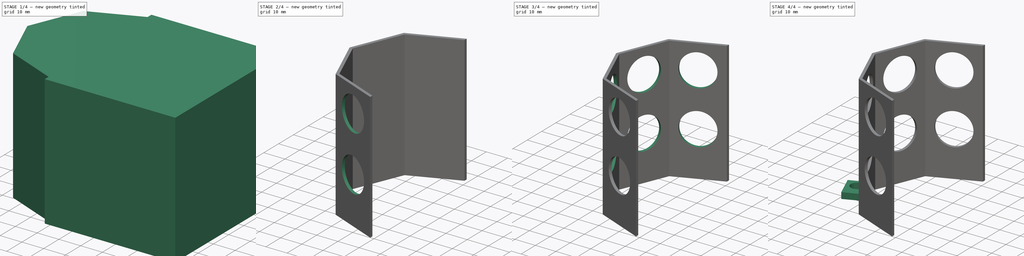
[diagram: build sequence overview — one tinted view per stage of 4, left to right]
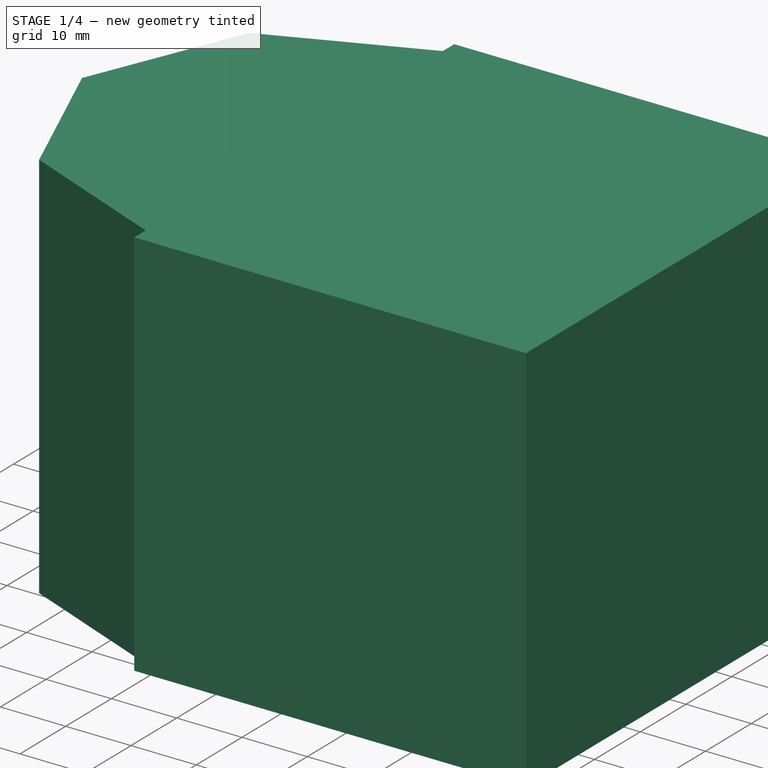
[diagram: stage 1 of 4 — iso view after this stage's code; geometry added in this stage tinted green]
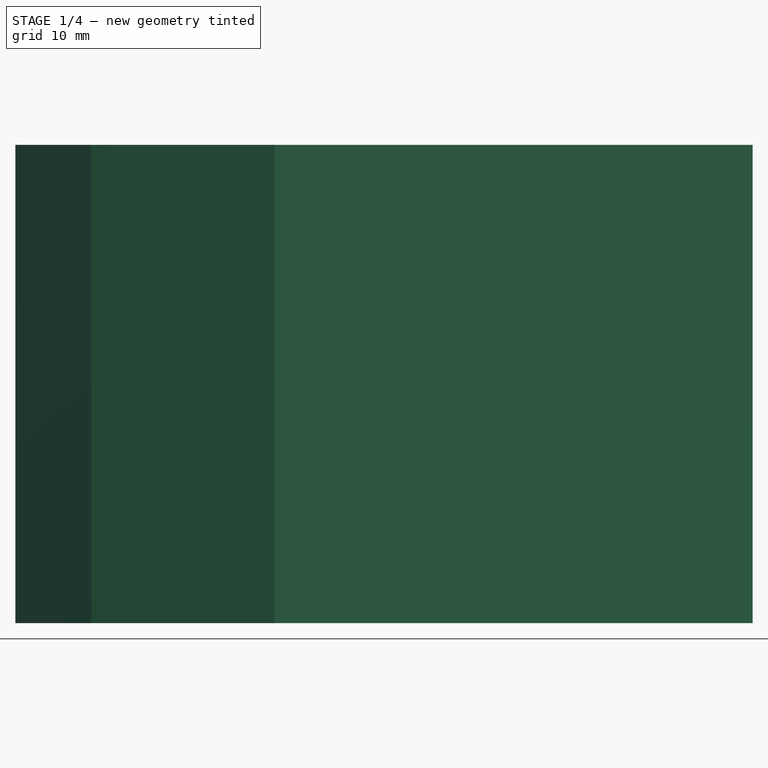
[diagram: stage 1 of 4 — front view after this stage's code; geometry added in this stage tinted green]
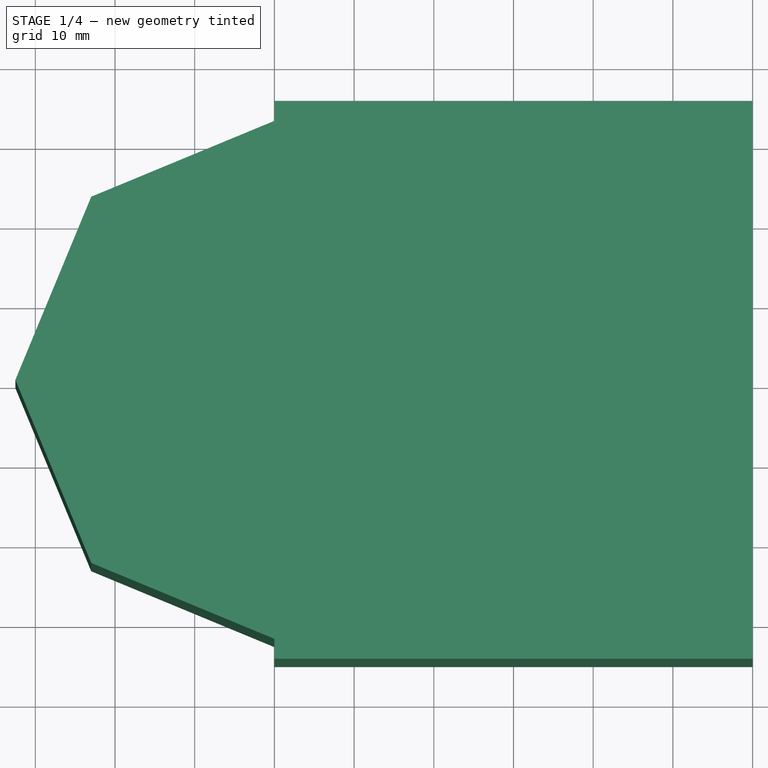
[diagram: stage 1 of 4 — top view after this stage's code; geometry added in this stage tinted green]
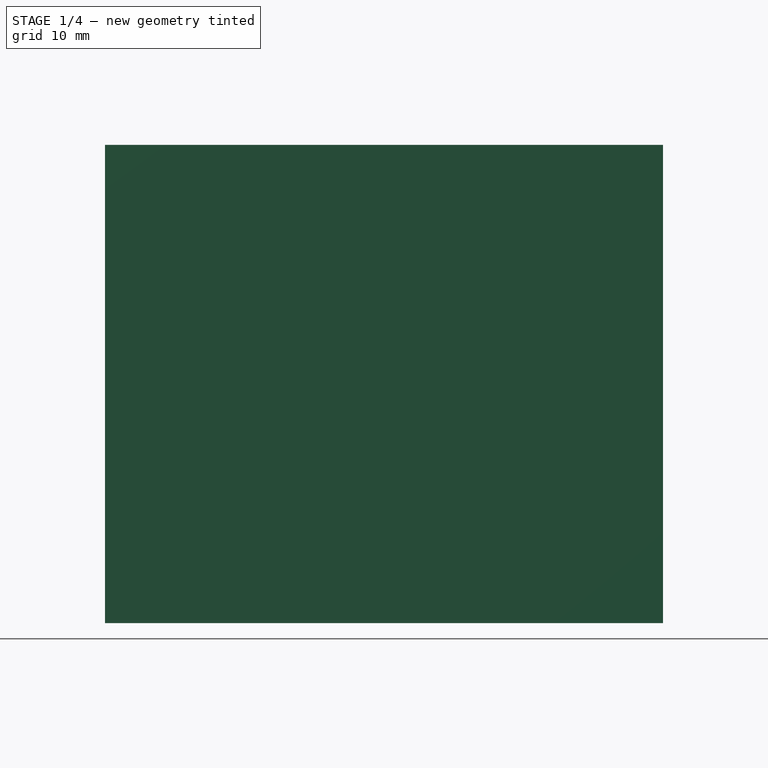
[diagram: stage 1 of 4 — right view after this stage's code; geometry added in this stage tinted green]
FCSTD DOCUMENT  (FreeCAD 0.14R3700 (Git))
Label: collar_ultrasonidos1
License: CC-BY 3.0
LicenseURL: http://creativecommons.org/licenses/by/3.0/
objects: Sketcher::SketchObject×8, PartDesign::Pocket×6, Part::Prism×2, Part::Cut×2, PartDesign::Pad×2, Part::Box×1
note: 29 computed .brp shape members not serialized (recipe doc carries the construction recipe); baked Part::Feature solids carry a one-line shape summary decoded from their .brp

FEATURE [Part::Prism] Prism  label="Prisma"
  Circumradius = 32.5
  Height = 60
  Polygon = 8
FEATURE [Part::Prism] Prism001  label="Prisma001"
  Circumradius = 31
  Height = 60
  Polygon = 8
FEATURE [Part::Box] Box  label="Cubo"
  Height = 60
  Length = 60
  Placement = pos=(0,-35,0) rot=(0,0,1;0rad)
  Width = 70
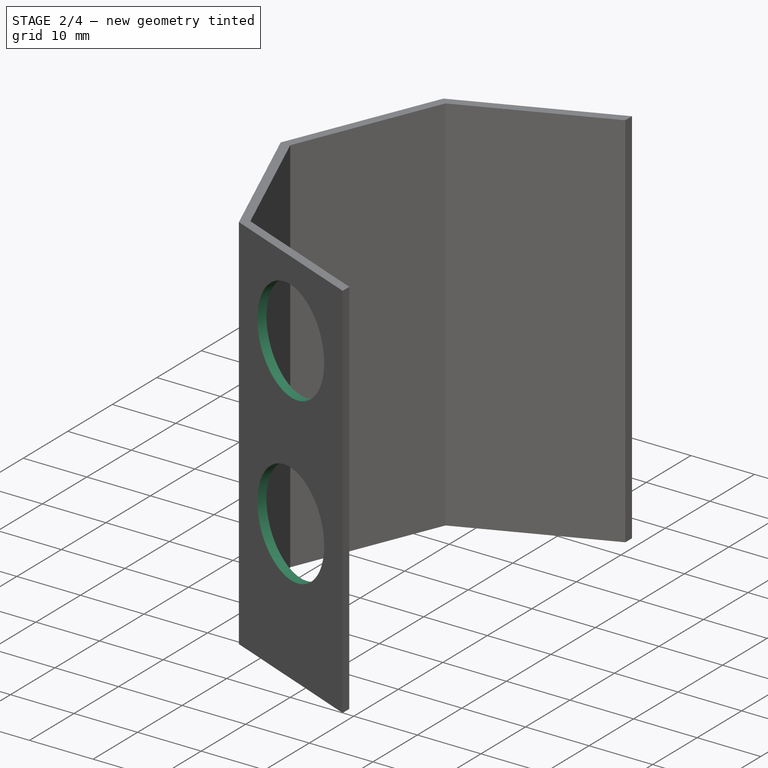
[diagram: stage 2 of 4 — iso view after this stage's code; geometry added in this stage tinted green]
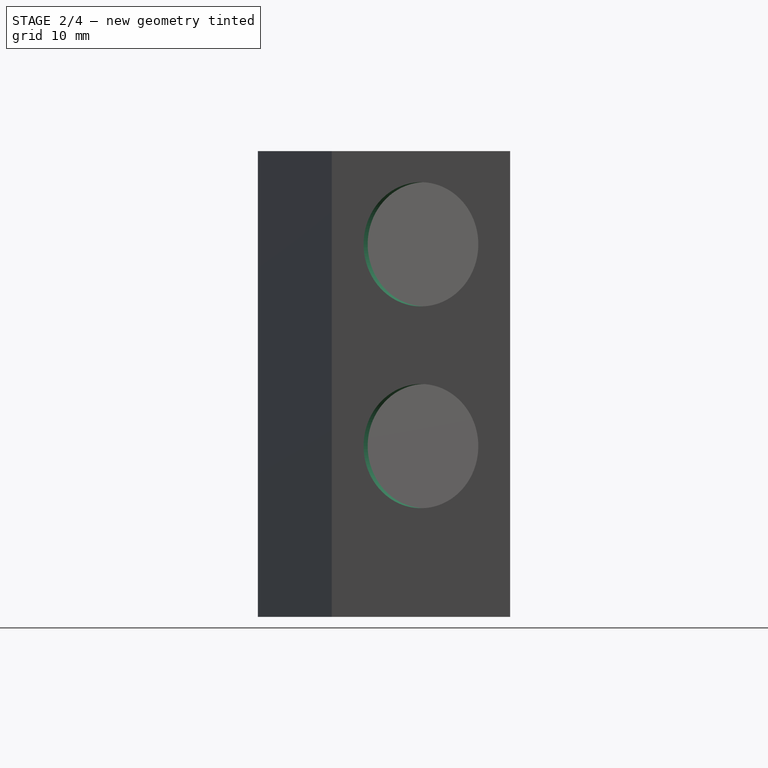
[diagram: stage 2 of 4 — front view after this stage's code; geometry added in this stage tinted green]
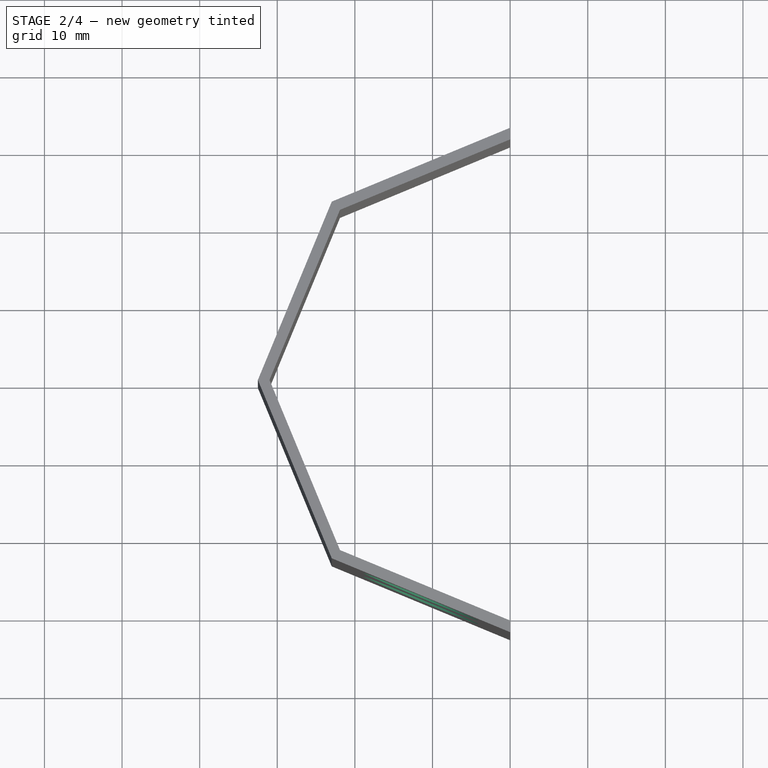
[diagram: stage 2 of 4 — top view after this stage's code; geometry added in this stage tinted green]
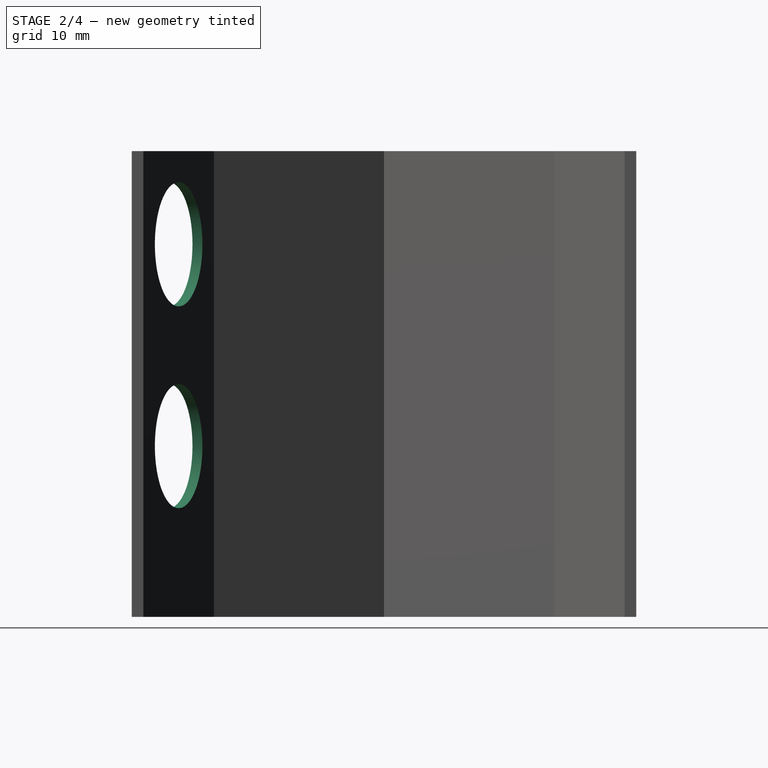
[diagram: stage 2 of 4 — right view after this stage's code; geometry added in this stage tinted green]
FEATURE [Part::Cut] Cut
  Base = -> Prism
  Tool = -> Prism001
FEATURE [Part::Cut] Cut001
  Base = -> Cut
  Tool = -> Box
FEATURE [Sketcher::SketchObject] Sketch
  ExternalGeometry = -> [Cut001]
  Placement = pos=(-11.4905,-27.7405,0) rot=(0.962637,-0.19148,-0.19148;1.60887rad)
  Support = -> Cut001 [Face7]
  sketch-geometry (3):
    g0: Circle CenterX=0 CenterY=48 CenterZ=0 NormalX=0 NormalY=0 NormalZ=1 Radius=8
    g1: Circle CenterX=0 CenterY=22 CenterZ=0 NormalX=0 NormalY=0 NormalZ=1 Radius=8
    g2: GeomPoint [constr] X=-1.8e-05 Y=60 Z=0
  constraints (7):
    c: PointOnObject(g0,g-2)
    c: PointOnObject(g1,g-2)
    c: Radius(g1) = 8
    c: Radius(g0) = 8
    c: DistanceY(g0,g1) = -26
    c: PointOnObject(g2,g-3)
    c: DistanceY(g2,g0) = -12
FEATURE [PartDesign::Pocket] Pocket
  Length = 2
  Sketch = -> Sketch
  Type = 0
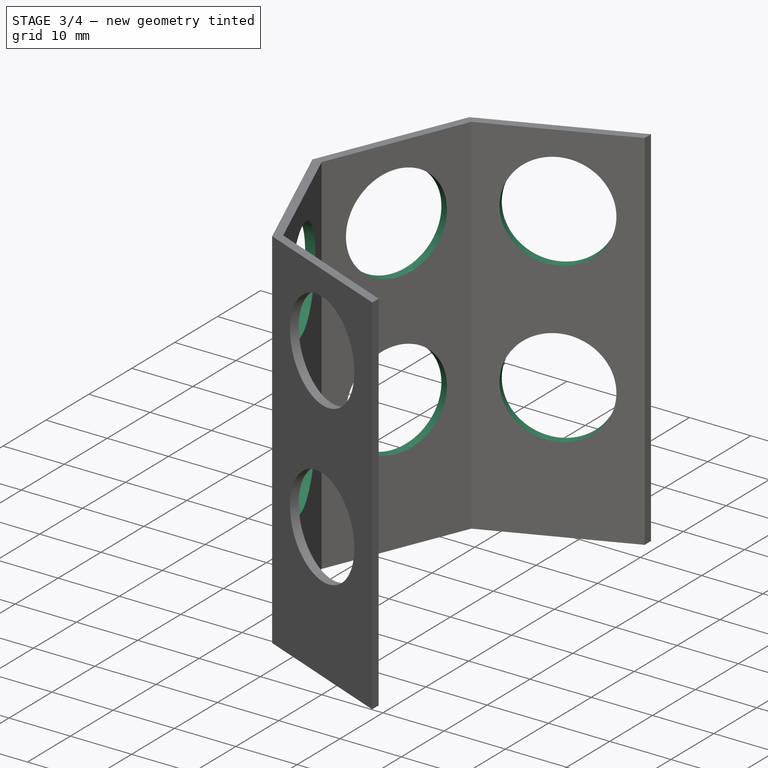
[diagram: stage 3 of 4 — iso view after this stage's code; geometry added in this stage tinted green]
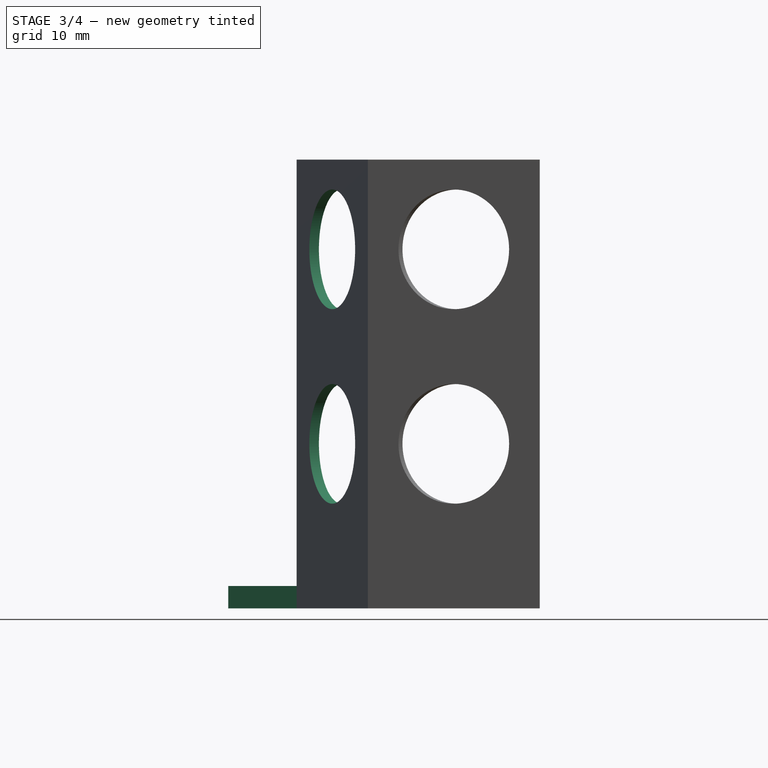
[diagram: stage 3 of 4 — front view after this stage's code; geometry added in this stage tinted green]
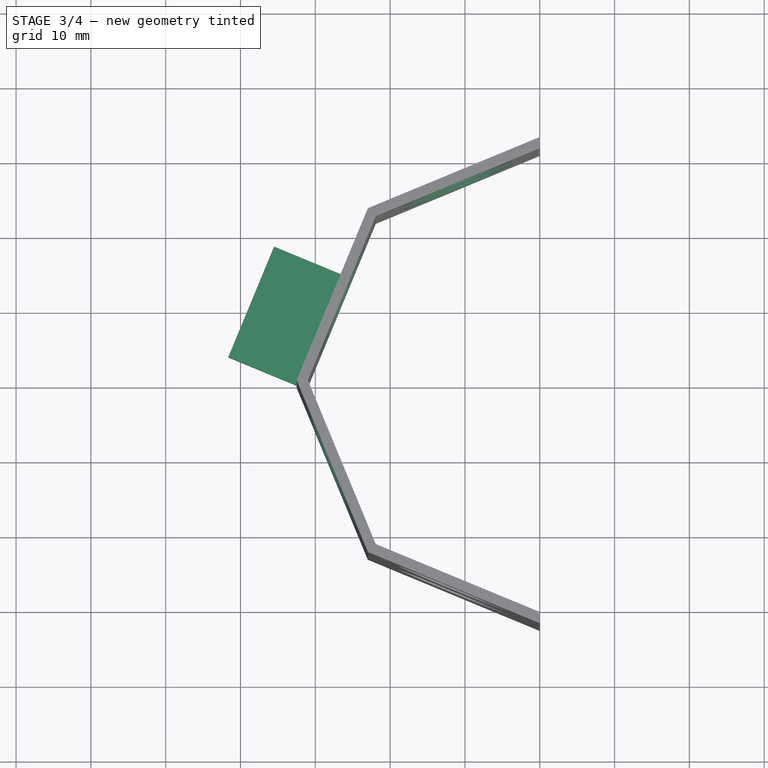
[diagram: stage 3 of 4 — top view after this stage's code; geometry added in this stage tinted green]
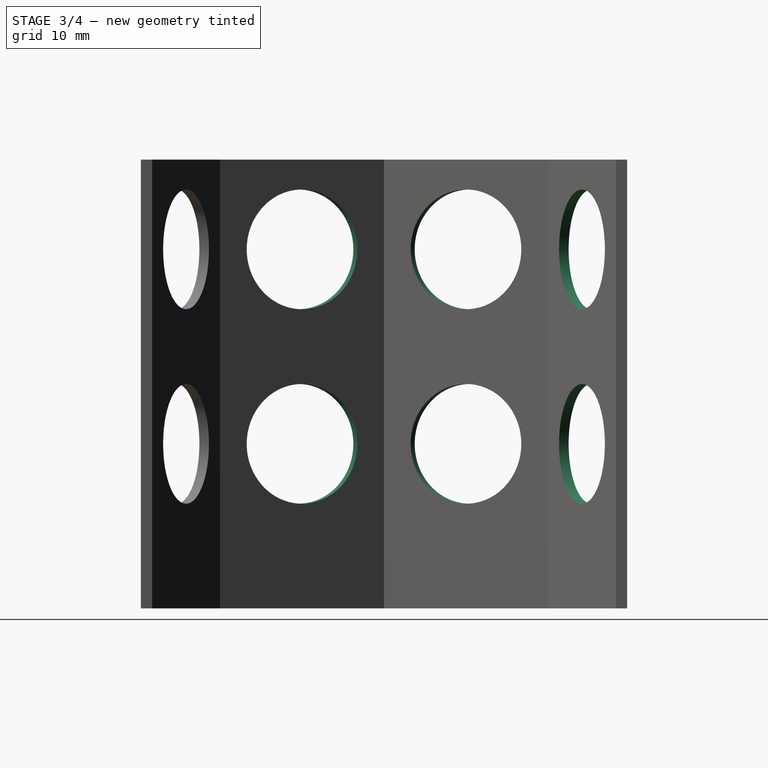
[diagram: stage 3 of 4 — right view after this stage's code; geometry added in this stage tinted green]
FEATURE [Sketcher::SketchObject] Sketch001
  ExternalGeometry = -> [Pocket]
  Placement = pos=(-27.7405,-11.4905,0) rot=(0.726831,-0.485653,-0.485653;1.88458rad)
  Support = -> Pocket [Face5]
  sketch-geometry (3):
    g0: Circle CenterX=0 CenterY=48 CenterZ=0 NormalX=0 NormalY=0 NormalZ=1 Radius=8
    g1: Circle CenterX=0 CenterY=22 CenterZ=0 NormalX=0 NormalY=0 NormalZ=1 Radius=8
    g2: GeomPoint [constr] X=0.23992 Y=60 Z=0
  constraints (7):
    c: PointOnObject(g0,g-2)
    c: PointOnObject(g1,g-2)
    c: Radius(g1) = 8
    c: Radius(g0) = 8
    c: DistanceY(g0,g1) = -26
    c: PointOnObject(g2,g-3)
    c: DistanceY(g2,g0) = -12
FEATURE [PartDesign::Pocket] Pocket001
  Length = 2
  Sketch = -> Sketch001
  Type = 0
FEATURE [Sketcher::SketchObject] Sketch002
  ExternalGeometry = -> [Pocket001]
  Placement = pos=(-27.7405,11.4905,0) rot=(-0.427192,0.639338,0.639338;3.94904rad)
  Support = -> Pocket001 [Face1]
  sketch-geometry (3):
    g0: Circle CenterX=0 CenterY=48 CenterZ=0 NormalX=0 NormalY=0 NormalZ=1 Radius=8
    g1: Circle CenterX=0 CenterY=22 CenterZ=0 NormalX=0 NormalY=0 NormalZ=1 Radius=8
    g2: GeomPoint [constr] X=-2e-06 Y=60 Z=0
  constraints (7):
    c: PointOnObject(g0,g-2)
    c: PointOnObject(g1,g-2)
    c: Radius(g1) = 8
    c: Radius(g0) = 8
    c: DistanceY(g0,g1) = -26
    c: PointOnObject(g2,g-3)
    c: DistanceY(g2,g0) = -12
FEATURE [PartDesign::Pocket] Pocket002
  Length = 2
  Sketch = -> Sketch002
  Type = 0
FEATURE [Sketcher::SketchObject] Sketch003
  ExternalGeometry = -> [Pocket002]
  Placement = pos=(-11.4905,27.7405,0) rot=(-0.139281,0.700215,0.700215;3.41838rad)
  Support = -> Pocket002 [Face1]
  sketch-geometry (3):
    g0: Circle CenterX=6e-06 CenterY=48 CenterZ=0 NormalX=0 NormalY=0 NormalZ=1 Radius=8
    g1: Circle CenterX=0 CenterY=22 CenterZ=0 NormalX=0 NormalY=0 NormalZ=1 Radius=8
    g2: GeomPoint [constr] X=0.119967 Y=60 Z=0
  constraints (6):
    c: PointOnObject(g1,g-2)
    c: Radius(g1) = 8
    c: Radius(g0) = 8
    c: DistanceY(g0,g1) = -26
    c: PointOnObject(g2,g-3)
    c: DistanceY(g2,g0) = -12
FEATURE [PartDesign::Pocket] Pocket003
  Length = 2
  Sketch = -> Sketch003
  Type = 0
FEATURE [Sketcher::SketchObject] Sketch004
  Placement = pos=(-27.7405,11.4905,0) rot=(-0.427192,0.639338,0.639338;3.94904rad)
  Support = -> Pocket003 [Face6]
  sketch-geometry (4):
    g0: LineSegment StartX=-3.82496 StartY=3 StartZ=0 EndX=12.1825 EndY=3 EndZ=0
    g1: LineSegment StartX=12.1825 StartY=3 StartZ=0 EndX=12.1825 EndY=0 EndZ=0
    g2: LineSegment StartX=12.1825 StartY=0 StartZ=0 EndX=-3.82496 EndY=0 EndZ=0
    g3: LineSegment StartX=-3.82496 StartY=0 StartZ=0 EndX=-3.82496 EndY=3 EndZ=0
  constraints (10):
    c: Coincident(g0,g1)
    c: Coincident(g1,g2)
    c: Coincident(g2,g3)
    c: Coincident(g3,g0)
    c: Horizontal(g0)
    c: Horizontal(g2)
    c: Vertical(g1)
    c: Vertical(g3)
    c: PointOnObject(g1,g-1)
    c: DistanceY(g3) = 3
FEATURE [PartDesign::Pad] Pad
  Length = 10
  Length2 = 100
  Sketch = -> Sketch004
  Type = 0
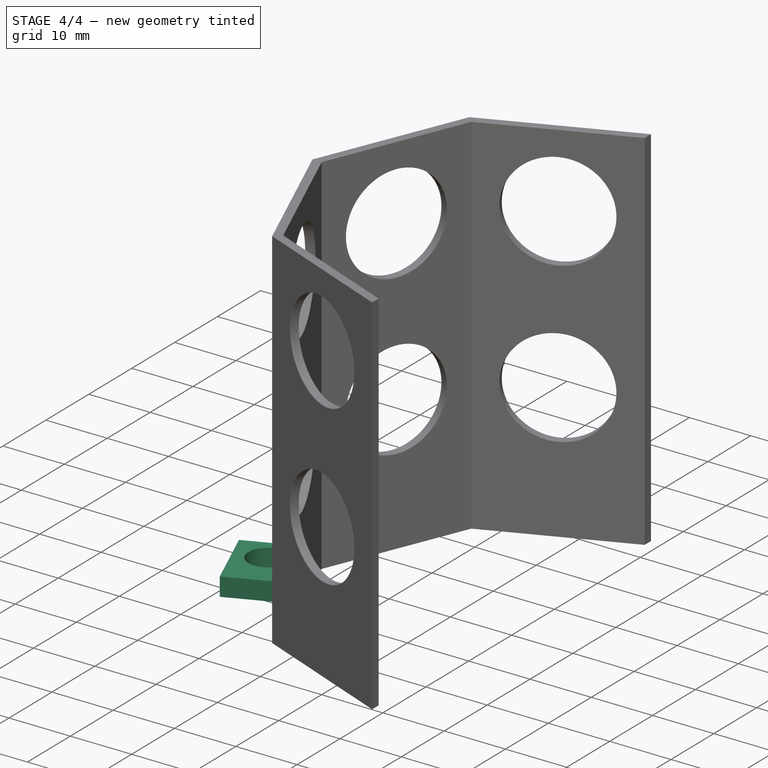
[diagram: stage 4 of 4 — iso view after this stage's code; geometry added in this stage tinted green]
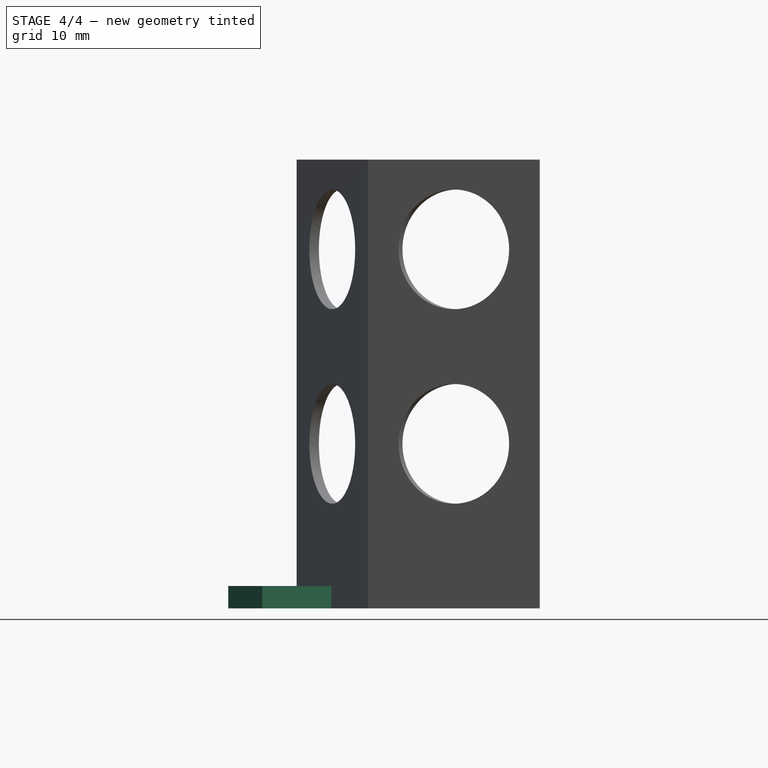
[diagram: stage 4 of 4 — front view after this stage's code; geometry added in this stage tinted green]
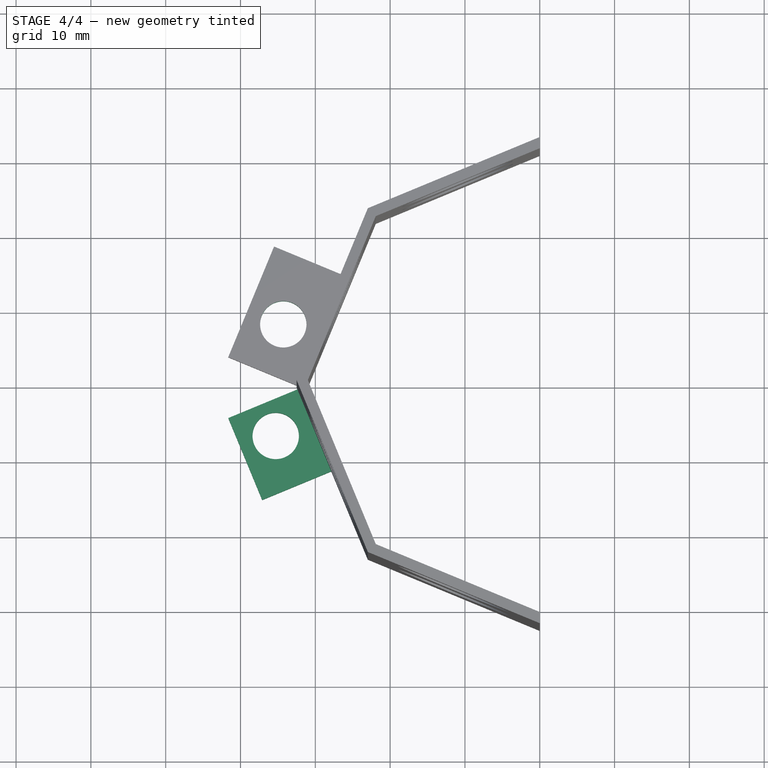
[diagram: stage 4 of 4 — top view after this stage's code; geometry added in this stage tinted green]
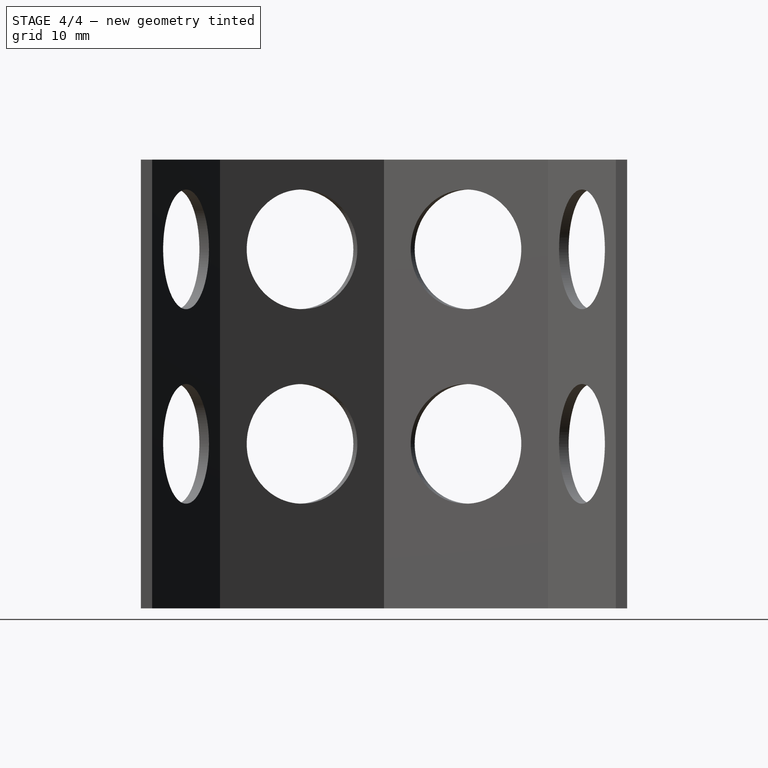
[diagram: stage 4 of 4 — right view after this stage's code; geometry added in this stage tinted green]
FEATURE [Sketcher::SketchObject] Sketch005
  Placement = pos=(-27.7405,-11.4905,0) rot=(0.726831,-0.485653,-0.485653;1.88458rad)
  Support = -> Pad [Face7]
  sketch-geometry (4):
    g0: LineSegment StartX=-12.167 StartY=3 StartZ=0 EndX=-0.314969 EndY=3 EndZ=0
    g1: LineSegment StartX=-0.314969 StartY=3 StartZ=0 EndX=-0.314969 EndY=0 EndZ=0
    g2: LineSegment StartX=-0.314969 StartY=0 StartZ=0 EndX=-12.167 EndY=0 EndZ=0
    g3: LineSegment StartX=-12.167 StartY=0 StartZ=0 EndX=-12.167 EndY=3 EndZ=0
  constraints (10):
    c: Coincident(g0,g1)
    c: Coincident(g1,g2)
    c: Coincident(g2,g3)
    c: Coincident(g3,g0)
    c: Horizontal(g0)
    c: Horizontal(g2)
    c: Vertical(g1)
    c: Vertical(g3)
    c: PointOnObject(g1,g-1)
    c: DistanceY(g1) = -3
FEATURE [PartDesign::Pad] Pad001
  Length = 10
  Length2 = 100
  Sketch = -> Sketch005
  Type = 0
FEATURE [Sketcher::SketchObject] Sketch006
  Placement = pos=(0,0,3) rot=(0,0,1;0rad)
  Support = -> Pad001 [Face18]
  sketch-geometry (1):
    g0: Circle CenterX=-34.2834 CenterY=8.45229 CenterZ=0 NormalX=0 NormalY=0 NormalZ=1 Radius=3.1
  constraints (1):
    c: Radius(g0) = 3.1
FEATURE [PartDesign::Pocket] Pocket004
  Length = 5
  Sketch = -> Sketch006
  Type = 0
FEATURE [Sketcher::SketchObject] Sketch007
  Placement = pos=(0,0,3) rot=(0,0,1;0rad)
  Support = -> Pocket004 [Face23]
  sketch-geometry (1):
    g0: Circle CenterX=-35.2952 CenterY=-6.47116 CenterZ=0 NormalX=0 NormalY=0 NormalZ=1 Radius=3.1
  constraints (1):
    c: Radius(g0) = 3.1
FEATURE [PartDesign::Pocket] Pocket005
  Length = 5
  Sketch = -> Sketch007
  Type = 0
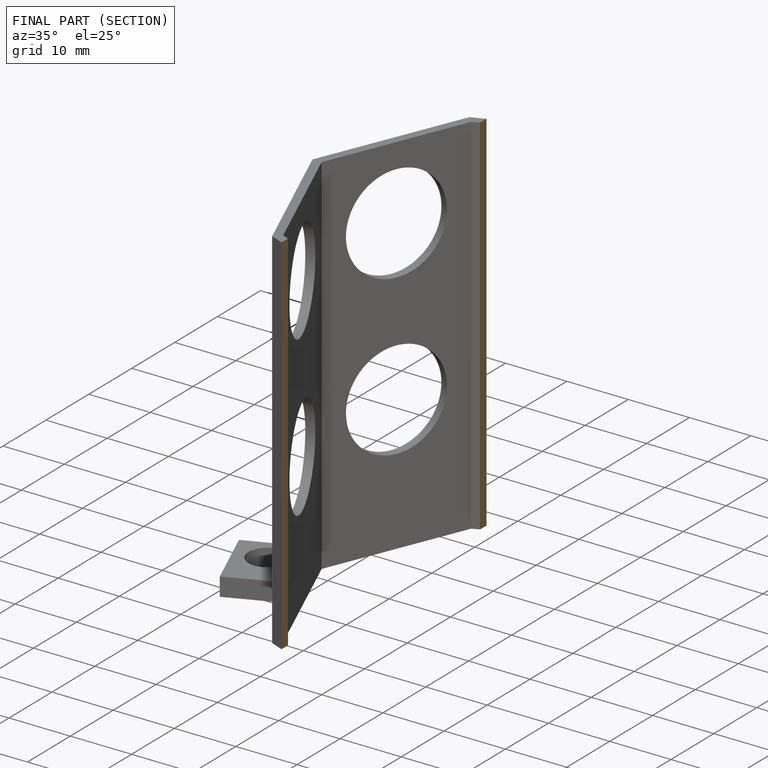
[diagram: finished part — half-section view (interior)]
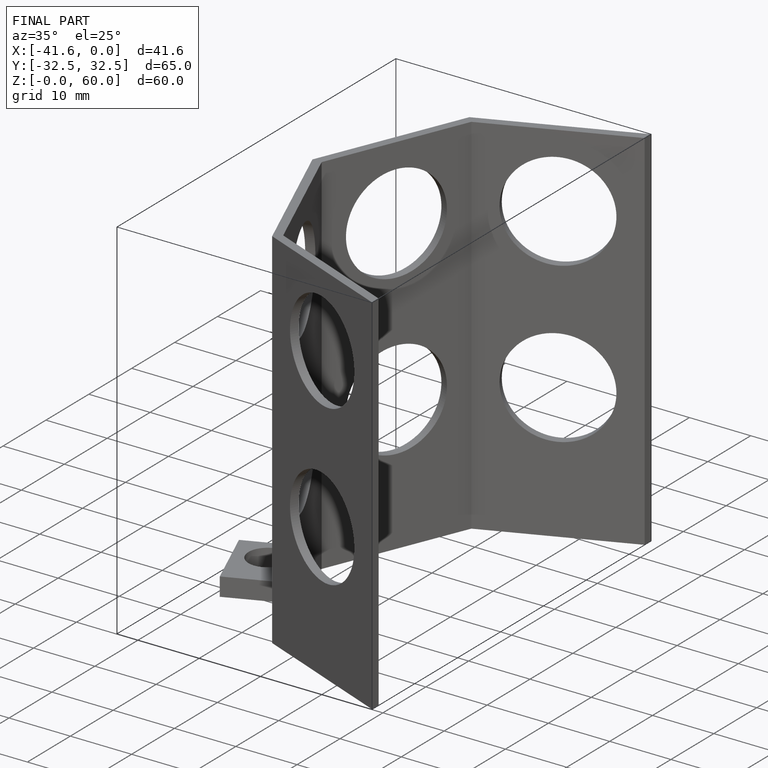
[diagram: finished part — iso view with bounding-box wireframe]
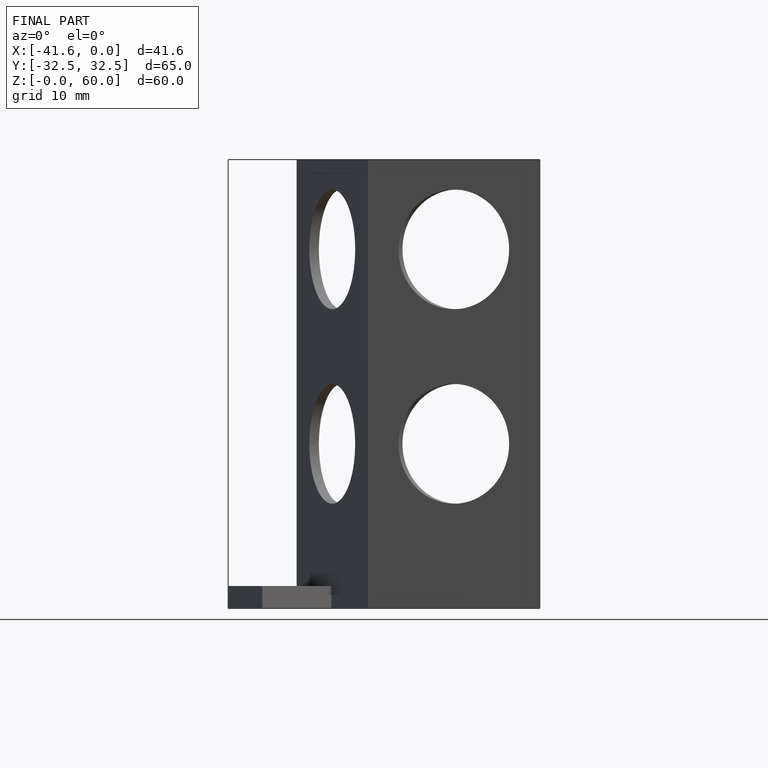
[diagram: finished part — front view with bounding-box wireframe]
